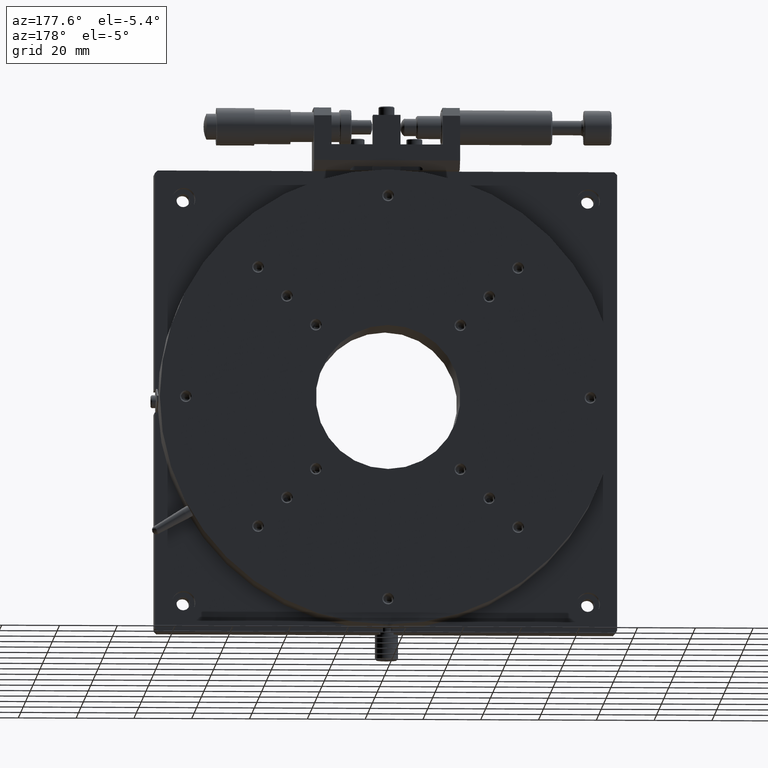
[diagram: clean part render]
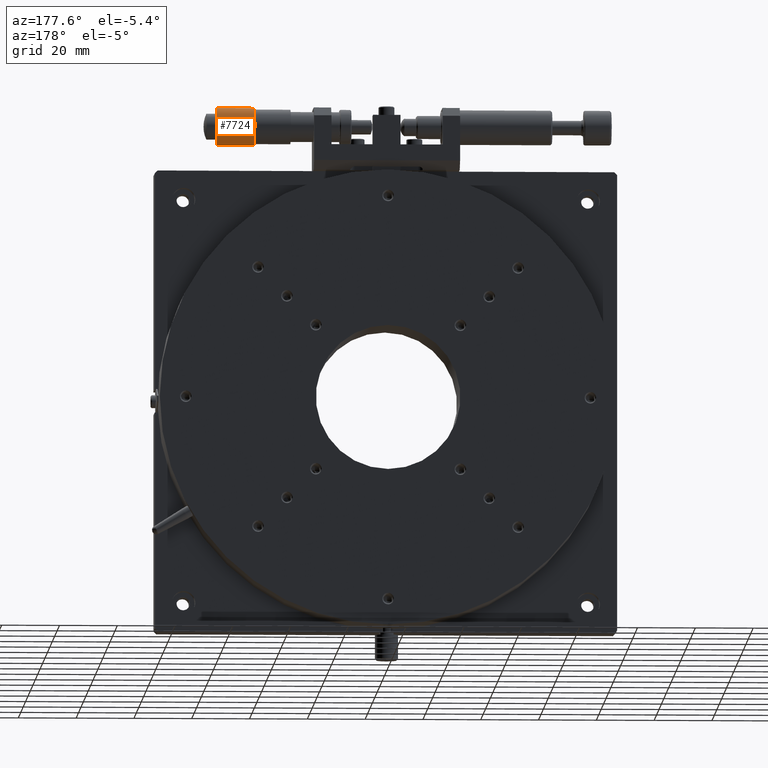
[diagram: same view with one face highlighted and labeled with its STEP entity id]
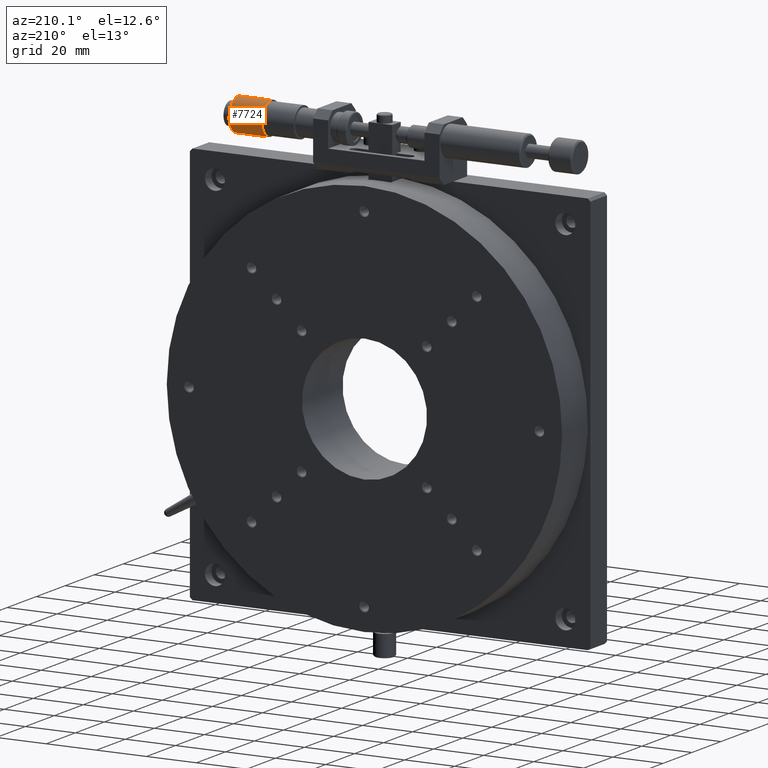
[diagram: same view with one face highlighted and labeled with its STEP entity id]
A machine part, auxiliary view. The second image highlights one B-rep face of the part: STEP entity #7724.
A second angle (auxiliary view) of the same face is appended — the face is thin or edge-on in the first view.
In plain terms, the highlighted cylindrical surface (edge-blend (fillet) strip) has radius 6.5 mm, axis along (-1, 0, 0).
Its self-contained STEP definition (entity closure, byte-faithful):
#1661 = EDGE_LOOP ( 'NONE', ( #4302, #4343, #4585, #4553 ) ) ;
#1978 = CARTESIAN_POINT ( 'NONE',  ( 138.8596729999999900, 15.00000000000000000, 175.0000000000000300 ) ) ;
#1992 = CARTESIAN_POINT ( 'NONE',  ( 84.75000000000000000, 15.00000000000000000, 168.5000000000000300 ) ) ;
#1997 = DIRECTION ( 'NONE',  ( -1.000000000000000000, 0.0000000000000000000, 0.0000000000000000000 ) ) ;
#2001 = DIRECTION ( 'NONE',  ( 0.0000000000000000000, 0.0000000000000000000, 1.000000000000000000 ) ) ;
#2004 = DIRECTION ( 'NONE',  ( -1.000000000000000000, 0.0000000000000000000, 0.0000000000000000000 ) ) ;
#2211 = CARTESIAN_POINT ( 'NONE',  ( 125.7519730000000200, 15.00000000000000000, 181.5000000000000000 ) ) ;
#2256 = CARTESIAN_POINT ( 'NONE',  ( 138.8596729999999900, 15.00000000000000000, 181.5000000000000000 ) ) ;
#2258 = CARTESIAN_POINT ( 'NONE',  ( 125.7519730000000200, 15.00000000000000000, 168.5000000000000300 ) ) ;
#2716 = CARTESIAN_POINT ( 'NONE',  ( 138.8596729999999900, 15.00000000000000000, 168.5000000000000300 ) ) ;
#3432 = EDGE_CURVE ( 'NONE', #8062, #8048, #5617, .T. ) ;
#3445 = CARTESIAN_POINT ( 'NONE',  ( 125.7519730000000200, 15.00000000000000000, 175.0000000000000300 ) ) ;
#3446 = DIRECTION ( 'NONE',  ( 0.0000000000000000000, 0.0000000000000000000, 1.000000000000000000 ) ) ;
#3447 = DIRECTION ( 'NONE',  ( 1.000000000000000000, -0.0000000000000000000, -0.0000000000000000000 ) ) ;
#3654 = DIRECTION ( 'NONE',  ( 0.0000000000000000000, 0.0000000000000000000, 1.000000000000000000 ) ) ;
#3668 = CARTESIAN_POINT ( 'NONE',  ( 84.75000000000000000, 15.00000000000000000, 175.0000000000000300 ) ) ;
#3669 = DIRECTION ( 'NONE',  ( -1.000000000000000000, 0.0000000000000000000, 0.0000000000000000000 ) ) ;
#4302 = ORIENTED_EDGE ( 'NONE', *, *, #7490, .T. ) ;
#4343 = ORIENTED_EDGE ( 'NONE', *, *, #7493, .T. ) ;
#4553 = ORIENTED_EDGE ( 'NONE', *, *, #3432, .F. ) ;
#4585 = ORIENTED_EDGE ( 'NONE', *, *, #7542, .T. ) ;
#5241 = LINE ( 'NONE', #1992, #5268 ) ;
#5268 = VECTOR ( 'NONE', #2004, 1000.000000000000000 ) ;
#5271 = CIRCLE ( 'NONE', #8992, 6.499999999999977800 ) ;
#5302 = CIRCLE ( 'NONE', #9032, 6.499999999999977800 ) ;
#5468 = FACE_OUTER_BOUND ( 'NONE', #1661, .T. ) ;
#5492 = CYLINDRICAL_SURFACE ( 'NONE', #9054, 6.499999999999977800 ) ;
#5617 = LINE ( 'NONE', #6564, #5620 ) ;
#5620 = VECTOR ( 'NONE', #6563, 1000.000000000000000 ) ;
#6563 = DIRECTION ( 'NONE',  ( -1.000000000000000000, 0.0000000000000000000, 0.0000000000000000000 ) ) ;
#6564 = CARTESIAN_POINT ( 'NONE',  ( 84.75000000000000000, 15.00000000000000000, 181.5000000000000000 ) ) ;
#7490 = EDGE_CURVE ( 'NONE', #8062, #8036, #5271, .T. ) ;
#7493 = EDGE_CURVE ( 'NONE', #8036, #8040, #5241, .T. ) ;
#7542 = EDGE_CURVE ( 'NONE', #8040, #8048, #5302, .T. ) ;
#7724 = ADVANCED_FACE ( 'NONE', ( #5468 ), #5492, .T. ) ;
#8036 = VERTEX_POINT ( 'NONE', #2716 ) ;
#8040 = VERTEX_POINT ( 'NONE', #2258 ) ;
#8048 = VERTEX_POINT ( 'NONE', #2211 ) ;
#8062 = VERTEX_POINT ( 'NONE', #2256 ) ;
#8992 = AXIS2_PLACEMENT_3D ( 'NONE', #1978, #1997, #2001 ) ;
#9032 = AXIS2_PLACEMENT_3D ( 'NONE', #3445, #3447, #3446 ) ;
#9054 = AXIS2_PLACEMENT_3D ( 'NONE', #3668, #3669, #3654 ) ;